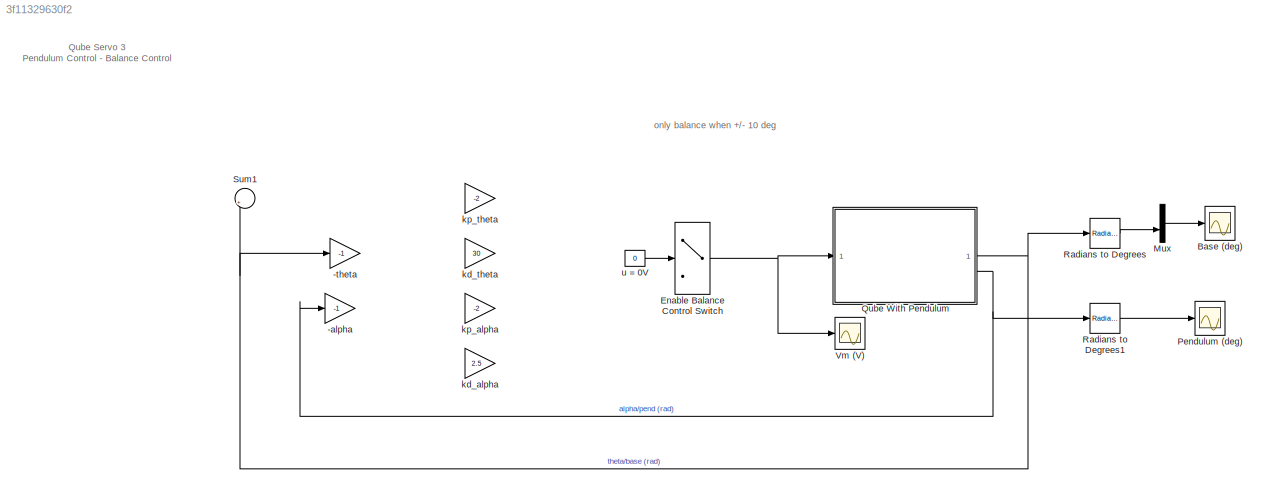
MODEL slx_3f11329630f2
KIND model
CONFIG AbsTol = auto
CONFIG EnableMultiTasking = on
CONFIG FixedStep = 0.002
CONFIG MaxStep = auto
CONFIG MinStep = auto
CONFIG RelTol = 1e-3
CONFIG SampleTimeConstraint = Unconstrained
CONFIG SolverName = ode4
CONFIG StartTime = 0.0
CONFIG StopTime = inf
BLOCK [Gain] -alpha
  Gain = -1
BLOCK [Gain] -theta
  Gain = -1
BLOCK [Scope] Base (deg)
  Floating = off
  NumInputPorts = 1
  ScopeSpecificationString = Simulink.scopes.TimeScopeBlockCfg('CurrentConfiguration', extmgr.ConfigurationSet(extmgr.Configuration('Core','General UI',true),extmgr.Configuration('Core','Source UI',true),extmgr.Configuration('Sources','WiredSimulink',true,'DataLoggingVariableName','ScopeData2'),extmgr.Configuration('Visuals','Time Domain',true,'SerializedDisplays',{struct('MinYLimReal','-39.39697','MaxYLimReal','43.43994','YL...<+1423ch>
BLOCK [MultiPortSwitch] Enable Balance Control Switch
  DataPortOrder = Zero-based contiguous
  InputSameDT = off
  Inputs = 2
  SaturateOnIntegerOverflow = off
  zeroidx = on
BLOCK [Mux] Mux
  DisplayOption = bar
  Inputs = 2
BLOCK [Scope] Pendulum (deg)
  Floating = off
  NumInputPorts = 1
  ScopeSpecificationString = Simulink.scopes.TimeScopeBlockCfg('CurrentConfiguration', extmgr.ConfigurationSet(extmgr.Configuration('Core','General UI',true),extmgr.Configuration('Core','Source UI',true),extmgr.Configuration('Sources','WiredSimulink',true,'DataLoggingVariableName','ScopeData1'),extmgr.Configuration('Visuals','Time Domain',true,'SerializedDisplays',{struct('MinYLimReal','-4.70215','MaxYLimReal','7.16309','YLab...<+1417ch>
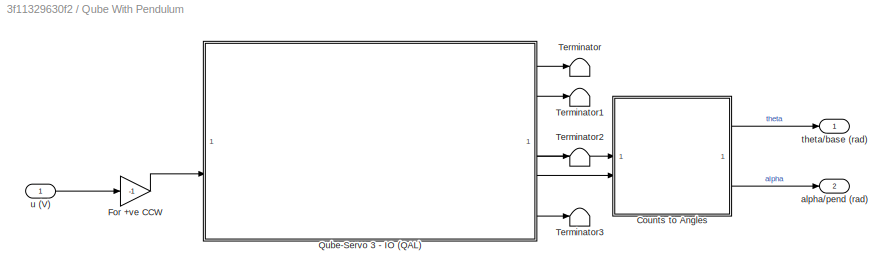
BLOCK [SubSystem] Qube With Pendulum
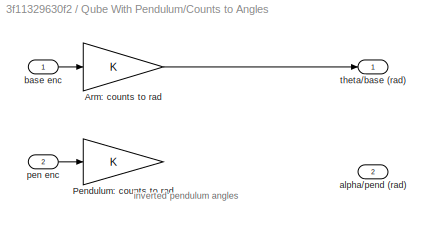
BLOCK [SubSystem] Qube With Pendulum/Counts to Angles
BLOCK [Gain] Qube With Pendulum/Counts to Angles/Arm: counts to rad
BLOCK [Gain] Qube With Pendulum/Counts to Angles/Pendulum: counts to rad
BLOCK [Outport] Qube With Pendulum/Counts to Angles/alpha//pend (rad)
  Port = 2
  VectorParamsAs1DForOutWhenUnconnected = off
BLOCK [Inport] Qube With Pendulum/Counts to Angles/base enc
BLOCK [Inport] Qube With Pendulum/Counts to Angles/pen enc
  Port = 2
BLOCK [Outport] Qube With Pendulum/Counts to Angles/theta//base (rad)
  VectorParamsAs1DForOutWhenUnconnected = off
BLOCK [Gain] Qube With Pendulum/For +ve CCW
  Gain = -1
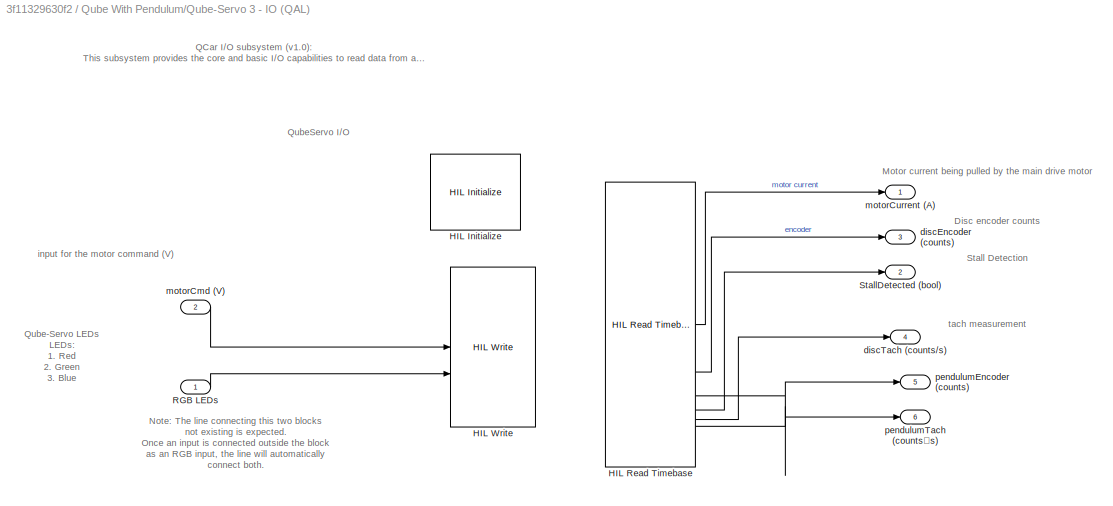
BLOCK [SubSystem] Qube With Pendulum/Qube-Servo 3 - IO (QAL)
  CopyFcn = set_param(gcbh,'LinkStatus','none');
  UserDataPersistent = on
BLOCK [Reference] Qube With Pendulum/Qube-Servo 3 - IO (QAL)/HIL Initialize  REF=quarc_library/Data Acquisition/Generic/Configuration/HIL Initialize
  AttributesFormatString = %<object_name> (%<board_type>-%<board_number>)
  SourceBlock = quarc_library/Data Acquisition/Generic/Configuration/HIL Initialize
  SourceProductName = QUARC Targets
  SourceType = HIL Initialize
  UserDataPersistent = on
BLOCK [Reference] Qube With Pendulum/Qube-Servo 3 - IO (QAL)/HIL Read Timebase  REF=quarc_library/Data Acquisition/Generic/Timebases/HIL Read
Timebase
  AttributesFormatString = (%<object_name>)
  SourceBlock = quarc_library/Data Acquisition/Generic/Timebases/HIL Read\nTimebase
  SourceProductName = QUARC Targets
  SourceType = HIL Read Timebase
  UserDataPersistent = on
BLOCK [Reference] Qube With Pendulum/Qube-Servo 3 - IO (QAL)/HIL Write  REF=quarc_library/Data Acquisition/Generic/Immediate I//O/HIL Write
  AttributesFormatString = (%<object_name>)
  SourceBlock = quarc_library/Data Acquisition/Generic/Immediate I//O/HIL Write
  SourceProductName = QUARC Targets
  SourceType = HIL Write
  UserDataPersistent = on
BLOCK [Inport] Qube With Pendulum/Qube-Servo 3 - IO (QAL)/RGB LEDs
BLOCK [Outport] Qube With Pendulum/Qube-Servo 3 - IO (QAL)/StallDetected (bool)
  Port = 2
  VectorParamsAs1DForOutWhenUnconnected = off
BLOCK [Outport] Qube With Pendulum/Qube-Servo 3 - IO (QAL)/discEncoder (counts)
  Port = 3
  VectorParamsAs1DForOutWhenUnconnected = off
BLOCK [Outport] Qube With Pendulum/Qube-Servo 3 - IO (QAL)/discTach (counts//s)
  Port = 4
  VectorParamsAs1DForOutWhenUnconnected = off
BLOCK [Inport] Qube With Pendulum/Qube-Servo 3 - IO (QAL)/motorCmd (V)
  Port = 2
BLOCK [Outport] Qube With Pendulum/Qube-Servo 3 - IO (QAL)/motorCurrent (A)
  VectorParamsAs1DForOutWhenUnconnected = off
BLOCK [Outport] Qube With Pendulum/Qube-Servo 3 - IO (QAL)/pendulumEncoder (counts)
  Port = 5
BLOCK [Outport] Qube With Pendulum/Qube-Servo 3 - IO (QAL)/pendulumTach (counts／s)
  Port = 6
BLOCK [Terminator] Qube With Pendulum/Terminator
BLOCK [Terminator] Qube With Pendulum/Terminator1
BLOCK [Terminator] Qube With Pendulum/Terminator2
BLOCK [Terminator] Qube With Pendulum/Terminator3
BLOCK [Outport] Qube With Pendulum/alpha//pend (rad)
  Port = 2
BLOCK [Outport] Qube With Pendulum/theta//base (rad)
BLOCK [Inport] Qube With Pendulum/u (V) 
BLOCK [Reference] Radians to Degrees  REF=simulink_extras/Transformations/Radians
to Degrees
  SourceBlock = simulink_extras/Transformations/Radians\nto Degrees
  SourceType = RadiansToDegrees
BLOCK [Reference] Radians to Degrees1  REF=simulink_extras/Transformations/Radians
to Degrees
  SourceBlock = simulink_extras/Transformations/Radians\nto Degrees
  SourceType = RadiansToDegrees
BLOCK [Sum] Sum1
  Inputs = |+-
BLOCK [Scope] Vm (V)
  Floating = off
  NumInputPorts = 1
  ScopeSpecificationString = Simulink.scopes.TimeScopeBlockCfg('CurrentConfiguration', extmgr.ConfigurationSet(extmgr.Configuration('Core','General UI',true),extmgr.Configuration('Core','Source UI',true),extmgr.Configuration('Sources','WiredSimulink',true,'DataLoggingVariableName','voltage','DataLogging',true,'DataLoggingSaveFormat','Array'),extmgr.Configuration('Visuals','Time Domain',true,'SerializedDisplays',{struct('MinYL...<+1514ch>
BLOCK [Gain] kd_alpha
  Gain = 2.5
BLOCK [Gain] kd_theta
  Gain = 30
BLOCK [Gain] kp_alpha
  Gain = -2
BLOCK [Gain] kp_theta
  Gain = -2
BLOCK [Constant] u = 0V
  NameLocation = top
  Value = 0
ANNOTATION (root): Qube Servo 3 Pendulum Control - Balance Control
ANNOTATION (root): only balance when +/- 10 deg
ANNOTATION Qube With Pendulum/Counts to Angles: inverted pendulum angles
ANNOTATION Qube With Pendulum/Qube-Servo 3 - IO (QAL): QCar I/O subsystem (v1.0): This subsystem provides the core and basic I/O capabilities to read data from and write data to the Qube Servo. The HIL Initialize block configures the IO settings, and the HIL Write and Read blocks are used for the actual IO.
ANNOTATION Qube With Pendulum/Qube-Servo 3 - IO (QAL): Disc encoder counts
ANNOTATION Qube With Pendulum/Qube-Servo 3 - IO (QAL): Stall Detection
ANNOTATION Qube With Pendulum/Qube-Servo 3 - IO (QAL): tach measurement
ANNOTATION Qube With Pendulum/Qube-Servo 3 - IO (QAL): Motor current being pulled by the main drive motor
ANNOTATION Qube With Pendulum/Qube-Servo 3 - IO (QAL): Qube-Servo LEDs LEDs: 1. Red 2. Green 3. Blue
ANNOTATION Qube With Pendulum/Qube-Servo 3 - IO (QAL): input for the motor command (V)
ANNOTATION Qube With Pendulum/Qube-Servo 3 - IO (QAL): Note: The line connecting this two blocks not existing is expected. Once an input is connected outside the block as an RGB input, the line will automatically connect both.
ANNOTATION Qube With Pendulum/Qube-Servo 3 - IO (QAL): QubeServo I/O
NET Enable Balance Control Switch:1 -> Qube With Pendulum:1, Vm (V):1
LINE Mux:1 -> Base (deg):1
LINE Qube With Pendulum/Counts to Angles/Arm: counts to rad:1 -> Qube With Pendulum/Counts to Angles/theta//base (rad):1
LINE Qube With Pendulum/Counts to Angles/base enc:1 -> Qube With Pendulum/Counts to Angles/Arm: counts to rad:1
LINE Qube With Pendulum/Counts to Angles/pen enc:1 -> Qube With Pendulum/Counts to Angles/Pendulum: counts to rad:1
LINE Qube With Pendulum/Counts to Angles:1 -> Qube With Pendulum/theta//base (rad):1
LINE Qube With Pendulum/Counts to Angles:2 -> Qube With Pendulum/alpha//pend (rad):1
LINE Qube With Pendulum/For +ve CCW:1 -> Qube With Pendulum/Qube-Servo 3 - IO (QAL):2
LINE Qube With Pendulum/Qube-Servo 3 - IO (QAL):1 -> Qube With Pendulum/Terminator:1
LINE Qube With Pendulum/Qube-Servo 3 - IO (QAL):2 -> Qube With Pendulum/Terminator1:1
LINE Qube With Pendulum/Qube-Servo 3 - IO (QAL):3 -> Qube With Pendulum/Counts to Angles:1
LINE Qube With Pendulum/Qube-Servo 3 - IO (QAL):4 -> Qube With Pendulum/Terminator2:1
LINE Qube With Pendulum/Qube-Servo 3 - IO (QAL):5 -> Qube With Pendulum/Counts to Angles:2
LINE Qube With Pendulum/Qube-Servo 3 - IO (QAL):6 -> Qube With Pendulum/Terminator3:1
LINE Qube With Pendulum/u (V) :1 -> Qube With Pendulum/For +ve CCW:1
NET Qube With Pendulum:1 -> -theta:1, Radians to Degrees:1, Sum1:2
NET Qube With Pendulum:2 -> -alpha:1, Radians to Degrees1:1
LINE Radians to Degrees1:1 -> Pendulum (deg):1
LINE Radians to Degrees:1 -> Mux:2
LINE u = 0V:1 -> Enable Balance Control Switch:2
note: NET lines group one-source signal fan-out (src -> all destinations, sorted); 1:1 wires keep LINE
